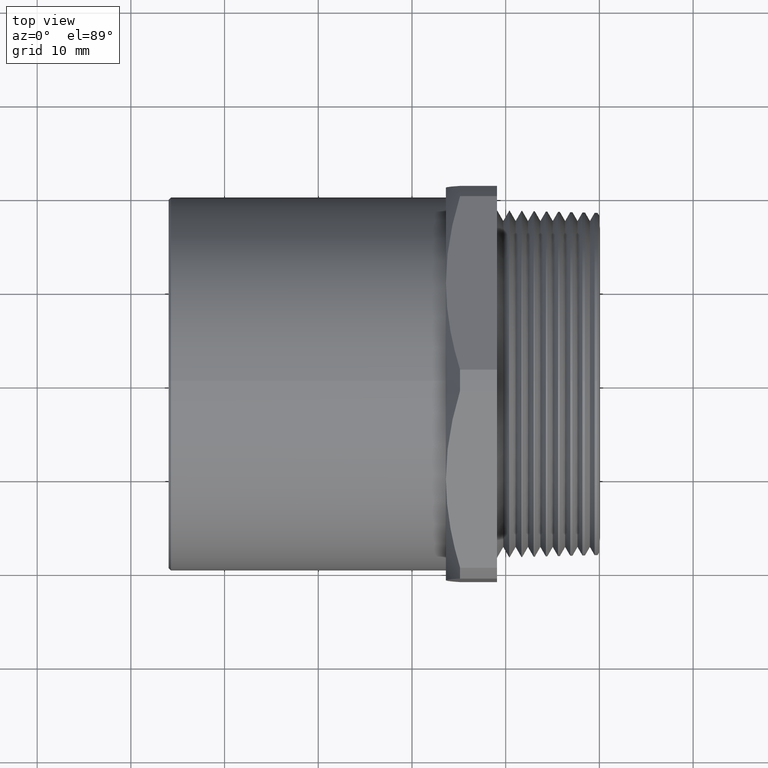
[diagram: clean part render]
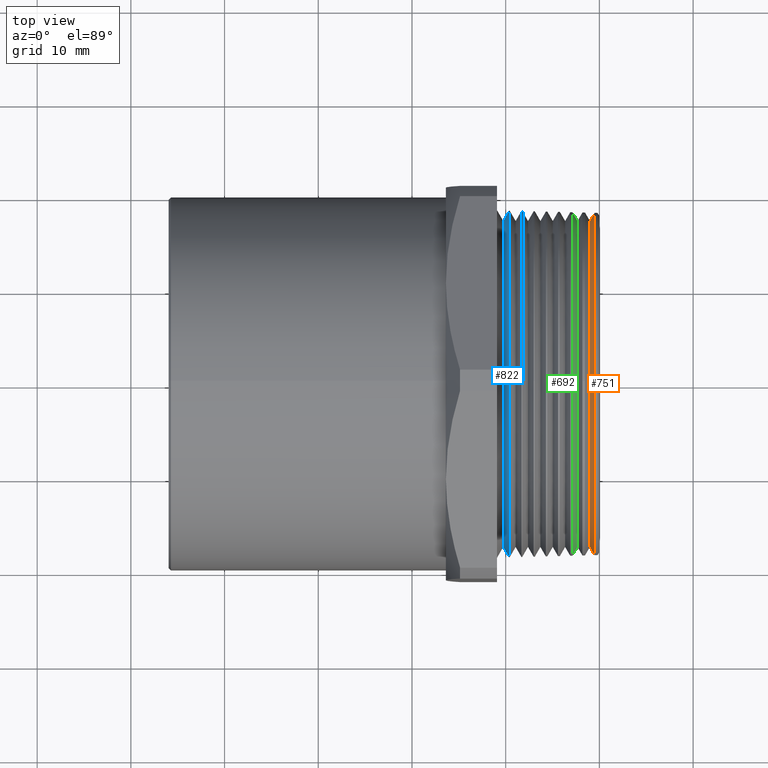
[diagram: same view with three faces highlighted in distinct colors, each labeled with its STEP entity id]
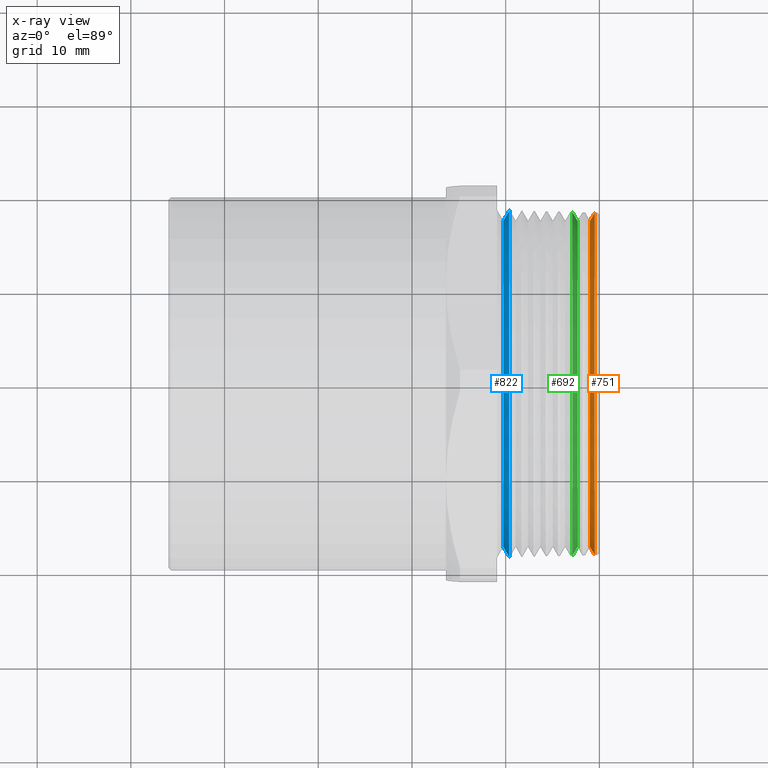
[diagram: x-ray of the same camera — body ghosted, the three highlighted faces saturated]
A machine part, top view with three faces highlighted in distinct colors.
The next image is the same camera in x-ray (body ghosted, the three faces saturated) — at least one of them is partly hidden behind the body in this view.
Their STEP definitions:

[orange] entity #751 — the highlighted conical surface has half-angle 60 deg.
#737 = ORIENTED_EDGE ( 'NONE', *, *, #738, .F. ) ;
#738 = EDGE_CURVE ( 'NONE', #754, #821, #2194, .T. ) ;
#751 = ADVANCED_FACE ( 'NONE', ( #2232 ), #2230, .T. ) ;
#752 = ORIENTED_EDGE ( 'NONE', *, *, #753, .T. ) ;
#753 = EDGE_CURVE ( 'NONE', #754, #755, #2225, .T. ) ;
#754 = VERTEX_POINT ( 'NONE', #2221 ) ;
#755 = VERTEX_POINT ( 'NONE', #2220 ) ;
#756 = ORIENTED_EDGE ( 'NONE', *, *, #757, .T. ) ;
#757 = EDGE_CURVE ( 'NONE', #755, #758, #2218, .T. ) ;
#758 = VERTEX_POINT ( 'NONE', #2276 ) ;
#759 = ORIENTED_EDGE ( 'NONE', *, *, #760, .F. ) ;
#760 = EDGE_CURVE ( 'NONE', #761, #758, #2274, .T. ) ;
#761 = VERTEX_POINT ( 'NONE', #2269 ) ;
#818 = EDGE_LOOP ( 'NONE', ( #752, #756, #759, #819, #737 ) ) ;
#819 = ORIENTED_EDGE ( 'NONE', *, *, #820, .F. ) ;
#820 = EDGE_CURVE ( 'NONE', #821, #761, #2384, .T. ) ;
#821 = VERTEX_POINT ( 'NONE', #2379 ) ;
#1709 = CARTESIAN_POINT ( 'NONE',  ( -0.03992727796626782000, -0.6848407207459552600, 8.386879965873004700E-017 ) ) ;
#1967 = VECTOR ( 'NONE', #2277, 39.37007874015748100 ) ;
#2191 = DIRECTION ( 'NONE',  ( 0.4999999999999941200, 0.8660254037844420400, 0.0000000000000000000 ) ) ;
#2192 = VECTOR ( 'NONE', #2191, 39.37007874015748100 ) ;
#2193 = CARTESIAN_POINT ( 'NONE',  ( -0.03992727796626777100, 0.6848407207459552600, 0.0000000000000000000 ) ) ;
#2194 = LINE ( 'NONE', #2193, #2192 ) ;
#2218 = LINE ( 'NONE', #1709, #1967 ) ;
#2220 = CARTESIAN_POINT ( 'NONE',  ( -0.03992727796626782000, -0.6848407207459552600, 0.0000000000000000000 ) ) ;
#2221 = CARTESIAN_POINT ( 'NONE',  ( -0.03992727796626777100, 0.6848407207459552600, 8.604140192199115800E-017 ) ) ;
#2222 = DIRECTION ( 'NONE',  ( 3.739712631676732700E-017, 1.000000000000000000, 0.0000000000000000000 ) ) ;
#2223 = DIRECTION ( 'NONE',  ( 1.000000000000000000, -3.789761643835506200E-017, 0.0000000000000000000 ) ) ;
#2224 = AXIS2_PLACEMENT_3D ( 'NONE', #2231, #2223, #2222 ) ;
#2225 = CIRCLE ( 'NONE', #2224, 0.6848407207459552600 ) ;
#2226 = DIRECTION ( 'NONE',  ( 3.739712631676732700E-017, 1.000000000000000000, 0.0000000000000000000 ) ) ;
#2227 = DIRECTION ( 'NONE',  ( 1.000000000000000000, -3.789761643835506200E-017, 0.0000000000000000000 ) ) ;
#2228 = CARTESIAN_POINT ( 'NONE',  ( -0.03992727796626779900, -5.625058858079700900E-017, 0.0000000000000000000 ) ) ;
#2229 = AXIS2_PLACEMENT_3D ( 'NONE', #2228, #2227, #2226 ) ;
#2230 = CONICAL_SURFACE ( 'NONE', #2229, 0.6848407207459552600, 1.047197551196604500 ) ;
#2231 = CARTESIAN_POINT ( 'NONE',  ( -0.03992727796626779900, -5.625058858079700900E-017, 0.0000000000000000000 ) ) ;
#2232 = FACE_OUTER_BOUND ( 'NONE', #818, .T. ) ;
#2269 = CARTESIAN_POINT ( 'NONE',  ( -0.02005232883713649700, 0.0000000000000000000, 0.7192651424354583600 ) ) ;
#2270 = DIRECTION ( 'NONE',  ( 3.560727947121477400E-017, 1.000000000000000000, 0.0000000000000000000 ) ) ;
#2271 = DIRECTION ( 'NONE',  ( 1.000000000000000000, -3.789761643835506200E-017, 0.0000000000000000000 ) ) ;
#2272 = CARTESIAN_POINT ( 'NONE',  ( -0.02005232883713649700, 0.0000000000000000000, 0.0000000000000000000 ) ) ;
#2273 = AXIS2_PLACEMENT_3D ( 'NONE', #2272, #2271, #2270 ) ;
#2274 = CIRCLE ( 'NONE', #2273, 0.7192651424354583600 ) ;
#2276 = CARTESIAN_POINT ( 'NONE',  ( -0.02005232883713652500, -0.7192651424354580300, 8.808457544218488300E-017 ) ) ;
#2277 = DIRECTION ( 'NONE',  ( 0.4999999999999940600, -0.8660254037844420400, 1.060575238724911100E-016 ) ) ;
#2379 = CARTESIAN_POINT ( 'NONE',  ( -0.02005232883713646900, 0.7192651424354580300, 0.0000000000000000000 ) ) ;
#2380 = DIRECTION ( 'NONE',  ( 3.560727947121477400E-017, 1.000000000000000000, 0.0000000000000000000 ) ) ;
#2381 = DIRECTION ( 'NONE',  ( 1.000000000000000000, -3.789761643835506200E-017, 0.0000000000000000000 ) ) ;
#2382 = CARTESIAN_POINT ( 'NONE',  ( -0.02005232883713649700, 0.0000000000000000000, 0.0000000000000000000 ) ) ;
#2383 = AXIS2_PLACEMENT_3D ( 'NONE', #2382, #2381, #2380 ) ;
#2384 = CIRCLE ( 'NONE', #2383, 0.7192651424354583600 ) ;

[blue] entity #822 — the highlighted conical surface has half-angle 60 deg.
#45 = VERTEX_POINT ( 'NONE', #928 ) ;
#46 = ORIENTED_EDGE ( 'NONE', *, *, #87, .F. ) ;
#47 = VERTEX_POINT ( 'NONE', #927 ) ;
#48 = EDGE_CURVE ( 'NONE', #47, #886, #989, .T. ) ;
#76 = ORIENTED_EDGE ( 'NONE', *, *, #77, .F. ) ;
#77 = EDGE_CURVE ( 'NONE', #887, #45, #1004, .T. ) ;
#87 = EDGE_CURVE ( 'NONE', #45, #47, #1037, .T. ) ;
#802 = ORIENTED_EDGE ( 'NONE', *, *, #48, .F. ) ;
#822 = ADVANCED_FACE ( 'NONE', ( #2378 ), #2375, .T. ) ;
#823 = ORIENTED_EDGE ( 'NONE', *, *, #824, .T. ) ;
#824 = EDGE_CURVE ( 'NONE', #887, #885, #2433, .T. ) ;
#826 = ORIENTED_EDGE ( 'NONE', *, *, #888, .T. ) ;
#885 = VERTEX_POINT ( 'NONE', #2482 ) ;
#886 = VERTEX_POINT ( 'NONE', #2481 ) ;
#887 = VERTEX_POINT ( 'NONE', #2480 ) ;
#888 = EDGE_CURVE ( 'NONE', #885, #886, #2479, .T. ) ;
#891 = EDGE_LOOP ( 'NONE', ( #823, #826, #802, #46, #76 ) ) ;
#927 = CARTESIAN_POINT ( 'NONE',  ( -0.3786311729181282000, 0.0000000000000000000, 0.7286548599229330000 ) ) ;
#928 = CARTESIAN_POINT ( 'NONE',  ( -0.3786311729181282000, 0.7286548599229331100, 0.0000000000000000000 ) ) ;
#985 = DIRECTION ( 'NONE',  ( 0.0000000000000000000, 1.000000000000000000, 0.0000000000000000000 ) ) ;
#986 = DIRECTION ( 'NONE',  ( 1.000000000000000000, -3.789761643835506200E-017, 0.0000000000000000000 ) ) ;
#987 = CARTESIAN_POINT ( 'NONE',  ( -0.3786311729181282000, -4.341451828373448600E-017, 0.0000000000000000000 ) ) ;
#988 = AXIS2_PLACEMENT_3D ( 'NONE', #987, #986, #985 ) ;
#989 = CIRCLE ( 'NONE', #988, 0.7286548599229331100 ) ;
#996 = DIRECTION ( 'NONE',  ( 0.4999999999999941200, 0.8660254037844420400, 0.0000000000000000000 ) ) ;
#997 = VECTOR ( 'NONE', #996, 39.37007874015748100 ) ;
#998 = CARTESIAN_POINT ( 'NONE',  ( -0.4039272779662677100, 0.6848407207459552600, 0.0000000000000000000 ) ) ;
#1004 = LINE ( 'NONE', #998, #997 ) ;
#1033 = DIRECTION ( 'NONE',  ( 0.0000000000000000000, 1.000000000000000000, 0.0000000000000000000 ) ) ;
#1034 = DIRECTION ( 'NONE',  ( 1.000000000000000000, -3.789761643835506200E-017, 0.0000000000000000000 ) ) ;
#1035 = CARTESIAN_POINT ( 'NONE',  ( -0.3786311729181282000, -4.341451828373448600E-017, 0.0000000000000000000 ) ) ;
#1036 = AXIS2_PLACEMENT_3D ( 'NONE', #1035, #1034, #1033 ) ;
#1037 = CIRCLE ( 'NONE', #1036, 0.7286548599229331100 ) ;
#2372 = DIRECTION ( 'NONE',  ( 0.0000000000000000000, 1.000000000000000000, 0.0000000000000000000 ) ) ;
#2373 = DIRECTION ( 'NONE',  ( 1.000000000000000000, -3.789761643835506200E-017, 0.0000000000000000000 ) ) ;
#2374 = AXIS2_PLACEMENT_3D ( 'NONE', #2377, #2373, #2372 ) ;
#2375 = CONICAL_SURFACE ( 'NONE', #2374, 0.6848407207459552600, 1.047197551196604500 ) ;
#2376 = CARTESIAN_POINT ( 'NONE',  ( -0.4039272779662677100, -4.245585619723576000E-017, 0.0000000000000000000 ) ) ;
#2377 = CARTESIAN_POINT ( 'NONE',  ( -0.4039272779662677100, -4.245585619723576000E-017, 0.0000000000000000000 ) ) ;
#2378 = FACE_OUTER_BOUND ( 'NONE', #891, .T. ) ;
#2430 = DIRECTION ( 'NONE',  ( 0.0000000000000000000, 1.000000000000000000, 0.0000000000000000000 ) ) ;
#2431 = DIRECTION ( 'NONE',  ( 1.000000000000000000, -3.789761643835506200E-017, 0.0000000000000000000 ) ) ;
#2432 = AXIS2_PLACEMENT_3D ( 'NONE', #2376, #2431, #2430 ) ;
#2433 = CIRCLE ( 'NONE', #2432, 0.6848407207459552600 ) ;
#2476 = DIRECTION ( 'NONE',  ( 0.4999999999999940600, -0.8660254037844420400, 1.060575238724911100E-016 ) ) ;
#2477 = VECTOR ( 'NONE', #2476, 39.37007874015748100 ) ;
#2478 = CARTESIAN_POINT ( 'NONE',  ( -0.4039272779662677100, -0.6848407207459552600, 8.386879965873004700E-017 ) ) ;
#2479 = LINE ( 'NONE', #2478, #2477 ) ;
#2480 = CARTESIAN_POINT ( 'NONE',  ( -0.4039272779662677100, 0.6848407207459552600, 8.663400799824343400E-017 ) ) ;
#2481 = CARTESIAN_POINT ( 'NONE',  ( -0.3786311729181282000, -0.7286548599229331100, 8.923448418877831800E-017 ) ) ;
#2482 = CARTESIAN_POINT ( 'NONE',  ( -0.4039272779662677100, -0.6848407207459552600, 0.0000000000000000000 ) ) ;

[green] entity #692 — the highlighted conical surface has half-angle 60 deg.
#610 = ORIENTED_EDGE ( 'NONE', *, *, #611, .T. ) ;
#611 = EDGE_CURVE ( 'NONE', #703, #612, #1994, .T. ) ;
#612 = VERTEX_POINT ( 'NONE', #1990 ) ;
#613 = ORIENTED_EDGE ( 'NONE', *, *, #614, .F. ) ;
#614 = EDGE_CURVE ( 'NONE', #615, #612, #1989, .T. ) ;
#615 = VERTEX_POINT ( 'NONE', #1984 ) ;
#631 = ORIENTED_EDGE ( 'NONE', *, *, #632, .F. ) ;
#632 = EDGE_CURVE ( 'NONE', #633, #615, #2017, .T. ) ;
#633 = VERTEX_POINT ( 'NONE', #2012 ) ;
#634 = ORIENTED_EDGE ( 'NONE', *, *, #635, .F. ) ;
#635 = EDGE_CURVE ( 'NONE', #704, #633, #2011, .T. ) ;
#692 = ADVANCED_FACE ( 'NONE', ( #2099 ), #2097, .T. ) ;
#693 = EDGE_LOOP ( 'NONE', ( #694, #610, #613, #631, #634 ) ) ;
#694 = ORIENTED_EDGE ( 'NONE', *, *, #702, .F. ) ;
#702 = EDGE_CURVE ( 'NONE', #703, #704, #2143, .T. ) ;
#703 = VERTEX_POINT ( 'NONE', #2134 ) ;
#704 = VERTEX_POINT ( 'NONE', #2133 ) ;
#1984 = CARTESIAN_POINT ( 'NONE',  ( -0.1132106362018242600, -5.347332397907130500E-017, 0.7217045785656284200 ) ) ;
#1985 = DIRECTION ( 'NONE',  ( 0.0000000000000000000, 0.0000000000000000000, 1.000000000000000000 ) ) ;
#1986 = DIRECTION ( 'NONE',  ( -1.000000000000000000, 0.0000000000000000000, 0.0000000000000000000 ) ) ;
#1987 = CARTESIAN_POINT ( 'NONE',  ( -0.1132106362018242600, -5.347332397907130500E-017, 0.0000000000000000000 ) ) ;
#1988 = AXIS2_PLACEMENT_3D ( 'NONE', #1987, #1986, #1985 ) ;
#1989 = CIRCLE ( 'NONE', #1988, 0.7217045785656284200 ) ;
#1990 = CARTESIAN_POINT ( 'NONE',  ( -0.1132106362018242600, 0.7217045785656285300, 8.838332020703864000E-017 ) ) ;
#1991 = DIRECTION ( 'NONE',  ( -0.5000000000000017800, 0.8660254037844374900, 1.060575238724905400E-016 ) ) ;
#1992 = VECTOR ( 'NONE', #1991, 39.37007874015748100 ) ;
#1993 = CARTESIAN_POINT ( 'NONE',  ( -0.1180000000000000500, 0.7299999999999999800, 8.939921633775678300E-017 ) ) ;
#1994 = LINE ( 'NONE', #1993, #1992 ) ;
#2008 = DIRECTION ( 'NONE',  ( -0.5000000000000017800, -0.8660254037844374900, 0.0000000000000000000 ) ) ;
#2009 = VECTOR ( 'NONE', #2008, 39.37007874015748100 ) ;
#2010 = CARTESIAN_POINT ( 'NONE',  ( -0.1180000000000001200, -0.7299999999999999800, 0.0000000000000000000 ) ) ;
#2011 = LINE ( 'NONE', #2010, #2009 ) ;
#2012 = CARTESIAN_POINT ( 'NONE',  ( -0.1132106362018242600, -0.7217045785656284200, 0.0000000000000000000 ) ) ;
#2013 = DIRECTION ( 'NONE',  ( 0.0000000000000000000, 0.0000000000000000000, 1.000000000000000000 ) ) ;
#2014 = DIRECTION ( 'NONE',  ( -1.000000000000000000, 0.0000000000000000000, 0.0000000000000000000 ) ) ;
#2015 = CARTESIAN_POINT ( 'NONE',  ( -0.1132106362018242600, -5.347332397907130500E-017, 0.0000000000000000000 ) ) ;
#2016 = AXIS2_PLACEMENT_3D ( 'NONE', #2015, #2014, #2013 ) ;
#2017 = CIRCLE ( 'NONE', #2016, 0.7217045785656284200 ) ;
#2093 = DIRECTION ( 'NONE',  ( -4.677821906959354800E-017, -1.000000000000000000, 0.0000000000000000000 ) ) ;
#2094 = DIRECTION ( 'NONE',  ( -1.000000000000000000, 3.789761643835506200E-017, 0.0000000000000000000 ) ) ;
#2095 = CARTESIAN_POINT ( 'NONE',  ( -0.1180000000000000800, -5.329181850686429700E-017, 0.0000000000000000000 ) ) ;
#2096 = AXIS2_PLACEMENT_3D ( 'NONE', #2095, #2094, #2093 ) ;
#2097 = CONICAL_SURFACE ( 'NONE', #2096, 0.7299999999999999800, 1.047197551196595600 ) ;
#2099 = FACE_OUTER_BOUND ( 'NONE', #693, .T. ) ;
#2133 = CARTESIAN_POINT ( 'NONE',  ( -0.09192727796626777600, -0.6848407207459552600, 0.0000000000000000000 ) ) ;
#2134 = CARTESIAN_POINT ( 'NONE',  ( -0.09192727796626770600, 0.6848407207459552600, 8.612605993288434300E-017 ) ) ;
#2135 = DIRECTION ( 'NONE',  ( 4.986283508902310600E-017, 1.000000000000000000, 0.0000000000000000000 ) ) ;
#2136 = DIRECTION ( 'NONE',  ( 1.000000000000000000, -3.789761643835506200E-017, 0.0000000000000000000 ) ) ;
#2137 = CARTESIAN_POINT ( 'NONE',  ( -0.09192727796626774800, -5.427991252600253300E-017, 0.0000000000000000000 ) ) ;
#2138 = AXIS2_PLACEMENT_3D ( 'NONE', #2137, #2136, #2135 ) ;
#2143 = CIRCLE ( 'NONE', #2138, 0.6848407207459552600 ) ;